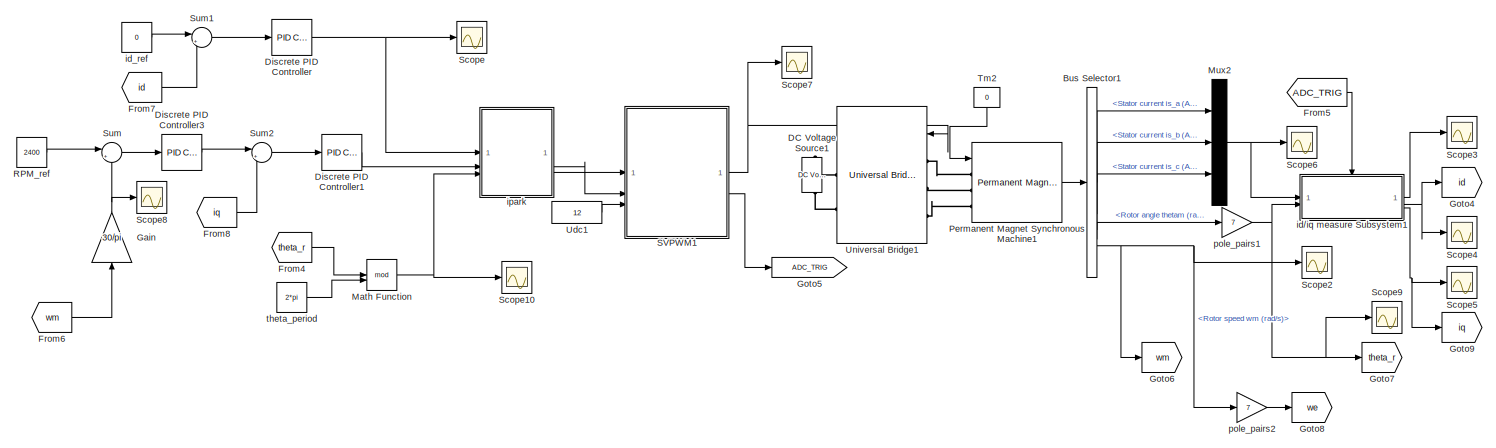
[diagram: root canvas - part 1/3, top center region]
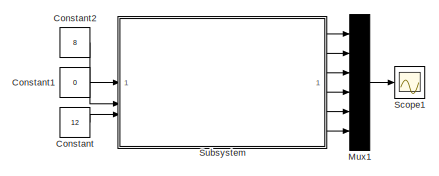
[diagram: root canvas - part 2/3, top right region]
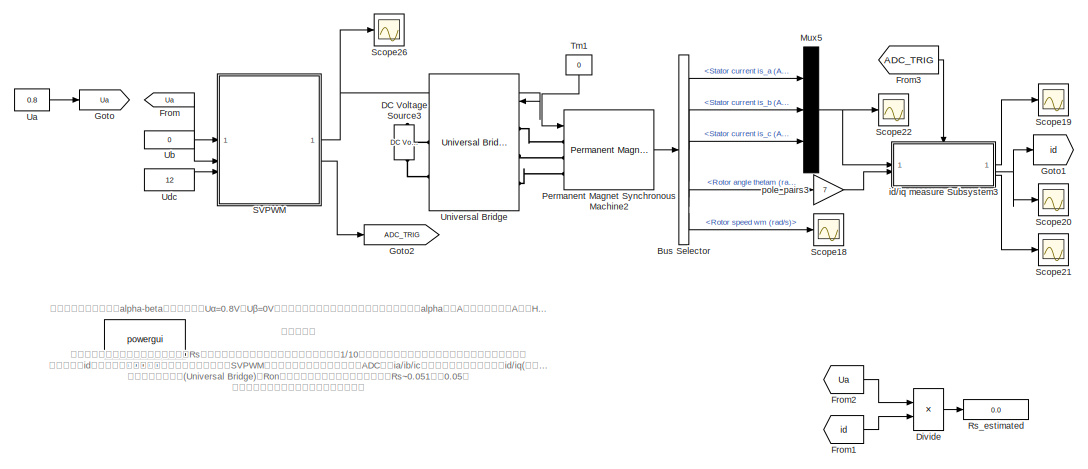
[diagram: root canvas - part 3/3, bottom center region]
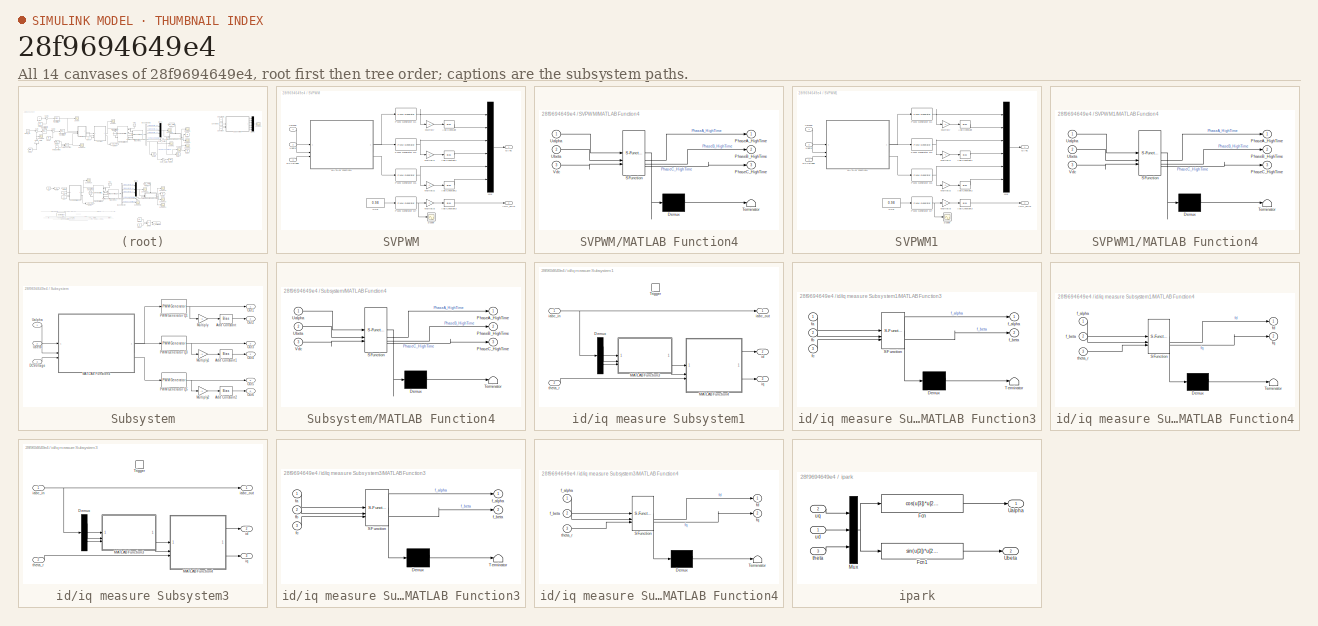
[diagram: thumbnail index - all 14 canvases of the model, root first then tree order]
MODEL slx_28f9694649e4
KIND model
CONFIG AbsTol = auto
CONFIG EnableMultiTasking = off
CONFIG FixedStep = 1E-6
CONFIG MaxStep = auto
CONFIG MinStep = auto
CONFIG RelTol = 1e-3
CONFIG SampleTimeConstraint = Unconstrained
CONFIG SolverName = FixedStepDiscrete
CONFIG StartTime = 0.0
CONFIG StopTime = 0.5
WORKSPACE source: mxarray member
WORKSPACE PWM_Frequency: Simulink.Parameter (value not decoded)
WORKSPACE TimerPeriod = 0.1
BLOCK [BusSelector] Bus Selector
  Commented = on
  OutputSignals = Stator current is_a (A),Stator current is_b (A),Stator current is_c (A),Rotor angle thetam (rad),Rotor speed wm (rad/s)
BLOCK [BusSelector] Bus Selector1
  OutputSignals = Stator current is_a (A),Stator current is_b (A),Stator current is_c (A),Rotor angle thetam (rad),Rotor speed wm (rad/s)
BLOCK [Constant] Constant
  Commented = on
  Value = 12
BLOCK [Constant] Constant1
  Commented = on
  Value = 0
BLOCK [Constant] Constant2
  Commented = on
  Value = 8
BLOCK [Reference] DC Voltage Source1  REF=spsDCVoltageSourceLib/DC Voltage Source
  LibrarySourceBlock = sps_lib/Sources/DC Voltage Source
  SourceBlock = spsDCVoltageSourceLib/DC Voltage Source
  SourceType = DC Voltage Source
BLOCK [Reference] DC Voltage Source3  REF=spsDCVoltageSourceLib/DC Voltage Source
  Commented = on
  LibrarySourceBlock = sps_lib/Sources/DC Voltage Source
  SourceBlock = spsDCVoltageSourceLib/DC Voltage Source
  SourceType = DC Voltage Source
BLOCK [Reference] Discrete PID Controller  REF=slpidlib/PID Controller
  LibrarySourceBlock = simulink/Discrete/Discrete PID Controller
  SourceBlock = slpidlib/PID Controller
  SourceType = PID 1dof
BLOCK [Reference] Discrete PID Controller1  REF=slpidlib/PID Controller
  LibrarySourceBlock = simulink/Discrete/Discrete PID Controller
  SourceBlock = slpidlib/PID Controller
  SourceType = PID 1dof
BLOCK [Reference] Discrete PID Controller3  REF=slpidlib/PID Controller
  LibrarySourceBlock = simulink/Discrete/Discrete PID Controller
  SourceBlock = slpidlib/PID Controller
  SourceType = PID 1dof
BLOCK [Product] Divide
  Commented = on
  Inputs = */
BLOCK [From] From
  Commented = on
  GotoTag = Ua
BLOCK [From] From1
  Commented = on
  GotoTag = id
BLOCK [From] From2
  Commented = on
  GotoTag = Ua
BLOCK [From] From3
  Commented = on
  GotoTag = ADC_TRIG
BLOCK [From] From4
  GotoTag = theta_r
BLOCK [From] From5
  GotoTag = ADC_TRIG
BLOCK [From] From6
  GotoTag = wm
BLOCK [From] From7
  GotoTag = id
BLOCK [From] From8
  GotoTag = iq
BLOCK [Gain] Gain
  Gain = 30/pi
  NameLocation = right
BLOCK [Goto] Goto
  Commented = on
  GotoTag = Ua
BLOCK [Goto] Goto1
  Commented = on
  GotoTag = id
BLOCK [Goto] Goto2
  Commented = on
  GotoTag = ADC_TRIG
BLOCK [Goto] Goto4
  GotoTag = id
BLOCK [Goto] Goto5
  GotoTag = ADC_TRIG
BLOCK [Goto] Goto6
  GotoTag = wm
BLOCK [Goto] Goto7
  GotoTag = theta_r
BLOCK [Goto] Goto8
  GotoTag = we
BLOCK [Goto] Goto9
  GotoTag = iq
BLOCK [Math] Math Function
  Operator = mod
BLOCK [Mux] Mux1
  Commented = on
  DisplayOption = bar
  Inputs = 6
BLOCK [Mux] Mux2
  DisplayOption = bar
  Inputs = 3
BLOCK [Mux] Mux5
  Commented = on
  DisplayOption = bar
  Inputs = 3
BLOCK [Reference] Permanent Magnet Synchronous Machine1  REF=spsPermanentMagnetSynchronousMachineLib/Permanent Magnet
Synchronous Machine
  LibrarySourceBlock = sps_lib/Electrical Machines/Permanent Magnet\nSynchronous Machine
  SourceBlock = spsPermanentMagnetSynchronousMachineLib/Permanent Magnet\nSynchronous Machine
  SourceType = Permanent Magnet Synchronous Machine
BLOCK [Reference] Permanent Magnet Synchronous Machine2  REF=spsPermanentMagnetSynchronousMachineLib/Permanent Magnet
Synchronous Machine
  Commented = on
  LibrarySourceBlock = sps_lib/Electrical Machines/Permanent Magnet\nSynchronous Machine
  SourceBlock = spsPermanentMagnetSynchronousMachineLib/Permanent Magnet\nSynchronous Machine
  SourceType = Permanent Magnet Synchronous Machine
BLOCK [Constant] RPM_ref
  Value = 2400
BLOCK [Display] Rs_estimated
  Commented = on
  Decimation = 1
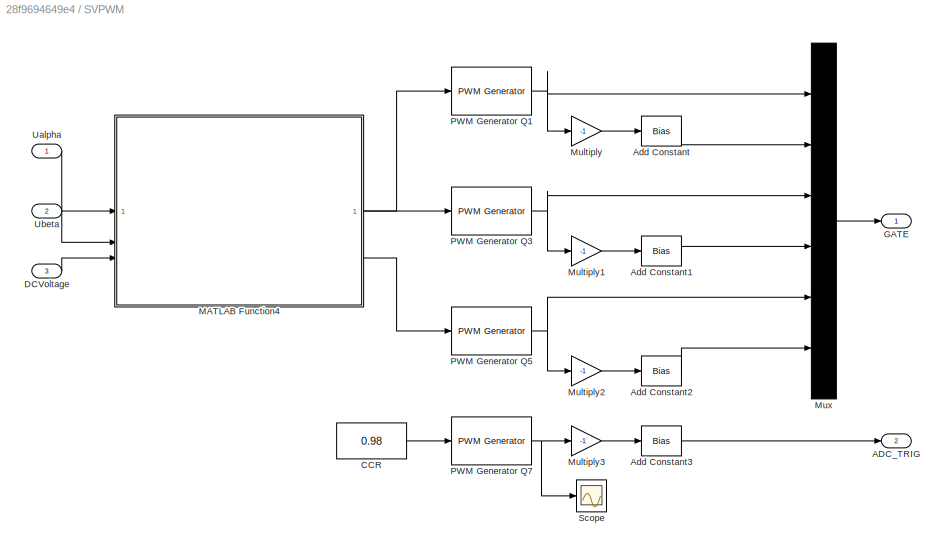
BLOCK [SubSystem] SVPWM
  Commented = on
BLOCK [Outport] SVPWM/ADC_TRIG
  Port = 2
BLOCK [Bias] SVPWM/Add Constant
  Bias = 1
  SaturateOnIntegerOverflow = off
BLOCK [Bias] SVPWM/Add Constant1
  Bias = 1
  SaturateOnIntegerOverflow = off
BLOCK [Bias] SVPWM/Add Constant2
  Bias = 1
  SaturateOnIntegerOverflow = off
BLOCK [Bias] SVPWM/Add Constant3
  Bias = 1
  SaturateOnIntegerOverflow = off
BLOCK [Constant] SVPWM/CCR
  Value = 0.98
BLOCK [Inport] SVPWM/DCVoltage
  IconDisplay = Signal name
  Port = 3
BLOCK [Outport] SVPWM/GATE
BLOCK [SubSystem] SVPWM/MATLAB Function4
  ErrorFcn = Stateflow.Translate.translate
  PermitHierarchicalResolution = ExplicitOnly
  SFBlockType = MATLAB Function
  TreatAsAtomicUnit = on
BLOCK [Demux] SVPWM/MATLAB Function4/ Demux 
  Outputs = 1
BLOCK [S-Function] SVPWM/MATLAB Function4/ SFunction 
  EnableBusSupport = on
  FunctionName = sf_sfun
  PortCounts = [3 4]
  SFcnIsStateOwnerBlock = off
  SFunctionDeploymentMode = off
  Tag = Stateflow S-Function 17
BLOCK [Terminator] SVPWM/MATLAB Function4/ Terminator 
BLOCK [Outport] SVPWM/MATLAB Function4/PhaseA_HighTime
BLOCK [Outport] SVPWM/MATLAB Function4/PhaseB_HighTime
  Port = 2
BLOCK [Outport] SVPWM/MATLAB Function4/PhaseC_HighTime
  Port = 3
BLOCK [Inport] SVPWM/MATLAB Function4/Ualpha
BLOCK [Inport] SVPWM/MATLAB Function4/Ubeta
  Port = 2
BLOCK [Inport] SVPWM/MATLAB Function4/Vdc
  Port = 3
BLOCK [Gain] SVPWM/Multiply
  Gain = -1
BLOCK [Gain] SVPWM/Multiply1
  Gain = -1
BLOCK [Gain] SVPWM/Multiply2
  Gain = -1
BLOCK [Gain] SVPWM/Multiply3
  Gain = -1
BLOCK [Mux] SVPWM/Mux
  DisplayOption = bar
  Inputs = 6
BLOCK [Reference] SVPWM/PWM Generator Q1  REF=eePwmGenerator/PWM Generator
  LibrarySourceBlock = ee_sl_lib/Pulse Width\nModulation/PWM Generator
  SourceBlock = eePwmGenerator/PWM Generator
  SourceType = PWM Generator
BLOCK [Reference] SVPWM/PWM Generator Q3  REF=eePwmGenerator/PWM Generator
  LibrarySourceBlock = ee_sl_lib/Pulse Width\nModulation/PWM Generator
  SourceBlock = eePwmGenerator/PWM Generator
  SourceType = PWM Generator
BLOCK [Reference] SVPWM/PWM Generator Q5  REF=eePwmGenerator/PWM Generator
  LibrarySourceBlock = ee_sl_lib/Pulse Width\nModulation/PWM Generator
  SourceBlock = eePwmGenerator/PWM Generator
  SourceType = PWM Generator
BLOCK [Reference] SVPWM/PWM Generator Q7  REF=eePwmGenerator/PWM Generator
  LibrarySourceBlock = ee_sl_lib/Pulse Width\nModulation/PWM Generator
  SourceBlock = eePwmGenerator/PWM Generator
  SourceType = PWM Generator
BLOCK [Scope] SVPWM/Scope
  Floating = off
  NumInputPorts = 1
  ScopeSpecificationString = Simulink.scopes.TimeScopeBlockCfg('CurrentConfiguration', extmgr.ConfigurationSet(extmgr.Configuration('Core','General UI',true),extmgr.Configuration('Core','Source UI',true),extmgr.Configuration('Sources','WiredSimulink',true,'DataLoggingVariableName','ScopeData1'),extmgr.Configuration('Visuals','Time Domain',true,'SerializedDisplays',{struct('MinYLimReal','-0.125','MaxYLimReal','1.125','YLabelRe...<+1555ch>
BLOCK [Inport] SVPWM/Ualpha
BLOCK [Inport] SVPWM/Ubeta
  Port = 2
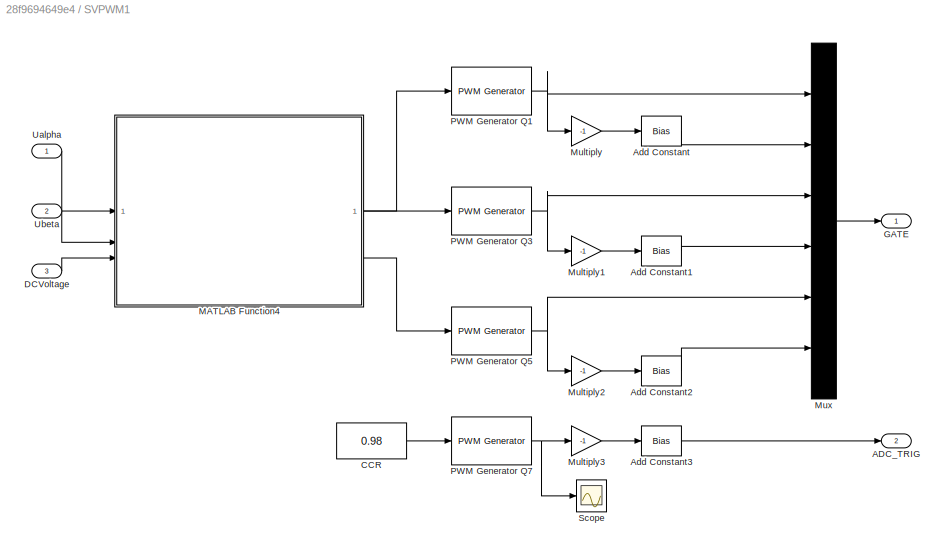
BLOCK [SubSystem] SVPWM1
BLOCK [Outport] SVPWM1/ADC_TRIG
  Port = 2
BLOCK [Bias] SVPWM1/Add Constant
  Bias = 1
  SaturateOnIntegerOverflow = off
BLOCK [Bias] SVPWM1/Add Constant1
  Bias = 1
  SaturateOnIntegerOverflow = off
BLOCK [Bias] SVPWM1/Add Constant2
  Bias = 1
  SaturateOnIntegerOverflow = off
BLOCK [Bias] SVPWM1/Add Constant3
  Bias = 1
  SaturateOnIntegerOverflow = off
BLOCK [Constant] SVPWM1/CCR
  Value = 0.98
BLOCK [Inport] SVPWM1/DCVoltage
  IconDisplay = Signal name
  Port = 3
BLOCK [Outport] SVPWM1/GATE
BLOCK [SubSystem] SVPWM1/MATLAB Function4
  ErrorFcn = Stateflow.Translate.translate
  PermitHierarchicalResolution = ExplicitOnly
  SFBlockType = MATLAB Function
  TreatAsAtomicUnit = on
BLOCK [Demux] SVPWM1/MATLAB Function4/ Demux 
  Outputs = 1
BLOCK [S-Function] SVPWM1/MATLAB Function4/ SFunction 
  EnableBusSupport = on
  FunctionName = sf_sfun
  PortCounts = [3 4]
  SFcnIsStateOwnerBlock = off
  SFunctionDeploymentMode = off
  Tag = Stateflow S-Function 1
BLOCK [Terminator] SVPWM1/MATLAB Function4/ Terminator 
BLOCK [Outport] SVPWM1/MATLAB Function4/PhaseA_HighTime
BLOCK [Outport] SVPWM1/MATLAB Function4/PhaseB_HighTime
  Port = 2
BLOCK [Outport] SVPWM1/MATLAB Function4/PhaseC_HighTime
  Port = 3
BLOCK [Inport] SVPWM1/MATLAB Function4/Ualpha
BLOCK [Inport] SVPWM1/MATLAB Function4/Ubeta
  Port = 2
BLOCK [Inport] SVPWM1/MATLAB Function4/Vdc
  Port = 3
BLOCK [Gain] SVPWM1/Multiply
  Gain = -1
BLOCK [Gain] SVPWM1/Multiply1
  Gain = -1
BLOCK [Gain] SVPWM1/Multiply2
  Gain = -1
BLOCK [Gain] SVPWM1/Multiply3
  Gain = -1
BLOCK [Mux] SVPWM1/Mux
  DisplayOption = bar
  Inputs = 6
BLOCK [Reference] SVPWM1/PWM Generator Q1  REF=eePwmGenerator/PWM Generator
  LibrarySourceBlock = ee_sl_lib/Pulse Width\nModulation/PWM Generator
  SourceBlock = eePwmGenerator/PWM Generator
  SourceType = PWM Generator
BLOCK [Reference] SVPWM1/PWM Generator Q3  REF=eePwmGenerator/PWM Generator
  LibrarySourceBlock = ee_sl_lib/Pulse Width\nModulation/PWM Generator
  SourceBlock = eePwmGenerator/PWM Generator
  SourceType = PWM Generator
BLOCK [Reference] SVPWM1/PWM Generator Q5  REF=eePwmGenerator/PWM Generator
  LibrarySourceBlock = ee_sl_lib/Pulse Width\nModulation/PWM Generator
  SourceBlock = eePwmGenerator/PWM Generator
  SourceType = PWM Generator
BLOCK [Reference] SVPWM1/PWM Generator Q7  REF=eePwmGenerator/PWM Generator
  LibrarySourceBlock = ee_sl_lib/Pulse Width\nModulation/PWM Generator
  SourceBlock = eePwmGenerator/PWM Generator
  SourceType = PWM Generator
BLOCK [Scope] SVPWM1/Scope
  Floating = off
  NumInputPorts = 1
  ScopeSpecificationString = Simulink.scopes.TimeScopeBlockCfg('CurrentConfiguration', extmgr.ConfigurationSet(extmgr.Configuration('Core','General UI',true),extmgr.Configuration('Core','Source UI',true),extmgr.Configuration('Sources','WiredSimulink',true,'DataLoggingVariableName','ScopeData1'),extmgr.Configuration('Visuals','Time Domain',true,'SerializedDisplays',{struct('MinYLimReal','-0.125','MaxYLimReal','1.125','YLabelRe...<+1555ch>
BLOCK [Inport] SVPWM1/Ualpha
BLOCK [Inport] SVPWM1/Ubeta
  Port = 2
BLOCK [Scope] Scope
  Floating = off
  NumInputPorts = 1
  ScopeSpecificationString = Simulink.scopes.TimeScopeBlockCfg('CurrentConfiguration', extmgr.ConfigurationSet(extmgr.Configuration('Core','General UI',true),extmgr.Configuration('Core','Source UI',true),extmgr.Configuration('Sources','WiredSimulink',true,'DataLoggingVariableName','ScopeData8'),extmgr.Configuration('Visuals','Time Domain',true),extmgr.Configuration('Tools','Plot Navigation',true),extmgr.Configuration('Tools',...<+40ch>
BLOCK [Scope] Scope1
  Commented = on
  Floating = off
  NumInputPorts = 1
  ScopeSpecificationString = Simulink.scopes.TimeScopeBlockCfg('CurrentConfiguration', extmgr.ConfigurationSet(extmgr.Configuration('Core','General UI',true),extmgr.Configuration('Core','Source UI',true),extmgr.Configuration('Sources','WiredSimulink',true,'DataLoggingVariableName','ScopeData1'),extmgr.Configuration('Visuals','Time Domain',true,'SerializedDisplays',{struct('MinYLimReal','-0.0185','MaxYLimReal','0.06099','YLabe...<+1881ch>
BLOCK [Scope] Scope10
  Floating = off
  NumInputPorts = 1
  ScopeSpecificationString = Simulink.scopes.TimeScopeBlockCfg('CurrentConfiguration', extmgr.ConfigurationSet(extmgr.Configuration('Core','General UI',true),extmgr.Configuration('Core','Source UI',true),extmgr.Configuration('Sources','WiredSimulink',true,'DataLoggingVariableName','ScopeData11'),extmgr.Configuration('Visuals','Time Domain',true,'SerializedDisplays',{struct('MinYLimReal','-0.7854','MaxYLimReal','7.06858','YLab...<+1490ch>
BLOCK [Scope] Scope18
  Commented = on
  Floating = off
  NumInputPorts = 1
  ScopeSpecificationString = Simulink.scopes.TimeScopeBlockCfg('CurrentConfiguration', extmgr.ConfigurationSet(extmgr.Configuration('Core','General UI',true),extmgr.Configuration('Core','Source UI',true),extmgr.Configuration('Sources','WiredSimulink',true,'DataLoggingVariableName','ScopeData5'),extmgr.Configuration('Visuals','Time Domain',true,'SerializedDisplays',{struct('MinYLimReal','-0.000000000000011','MaxYLimReal','0.00...<+1651ch>
BLOCK [Scope] Scope19
  Commented = on
  Floating = off
  NumInputPorts = 1
  ScopeSpecificationString = Simulink.scopes.TimeScopeBlockCfg('CurrentConfiguration', extmgr.ConfigurationSet(extmgr.Configuration('Core','General UI',true),extmgr.Configuration('Core','Source UI',true),extmgr.Configuration('Sources','WiredSimulink',true,'DataLoggingVariableName','ScopeData6'),extmgr.Configuration('Visuals','Time Domain',true,'SerializedDisplays',{struct('MinYLimReal','1.56942352','MaxYLimReal','1.56942386',...<+1643ch>
BLOCK [Scope] Scope2
  Floating = off
  NumInputPorts = 1
  ScopeSpecificationString = Simulink.scopes.TimeScopeBlockCfg('CurrentConfiguration', extmgr.ConfigurationSet(extmgr.Configuration('Core','General UI',true),extmgr.Configuration('Core','Source UI',true),extmgr.Configuration('Sources','WiredSimulink',true,'DataLoggingVariableName','ScopeData2'),extmgr.Configuration('Visuals','Time Domain',true,'SerializedDisplays',{struct('MinYLimReal','-0.0000000000000016','MaxYLimReal','0.0...<+1639ch>
BLOCK [Scope] Scope20
  Commented = on
  Floating = off
  NumInputPorts = 1
  ScopeSpecificationString = Simulink.scopes.TimeScopeBlockCfg('CurrentConfiguration', extmgr.ConfigurationSet(extmgr.Configuration('Core','General UI',true),extmgr.Configuration('Core','Source UI',true),extmgr.Configuration('Sources','WiredSimulink',true,'DataLoggingVariableName','ScopeData7'),extmgr.Configuration('Visuals','Time Domain',true,'SerializedDisplays',{struct('MinYLimReal','-1.96106','MaxYLimReal','17.64955','YLa...<+1562ch>
BLOCK [Scope] Scope21
  Commented = on
  Floating = off
  NumInputPorts = 1
  ScopeSpecificationString = Simulink.scopes.TimeScopeBlockCfg('CurrentConfiguration', extmgr.ConfigurationSet(extmgr.Configuration('Core','General UI',true),extmgr.Configuration('Core','Source UI',true),extmgr.Configuration('Sources','WiredSimulink',true,'DataLoggingVariableName','ScopeData8'),extmgr.Configuration('Visuals','Time Domain',true,'SerializedDisplays',{struct('MinYLimReal','-0.00000000000001','MaxYLimReal','0.000...<+1634ch>
BLOCK [Scope] Scope22
  Commented = on
  Floating = off
  NumInputPorts = 1
  ScopeSpecificationString = Simulink.scopes.TimeScopeBlockCfg('CurrentConfiguration', extmgr.ConfigurationSet(extmgr.Configuration('Core','General UI',true),extmgr.Configuration('Core','Source UI',true),extmgr.Configuration('Sources','WiredSimulink',true,'DataLoggingVariableName','ScopeData9'),extmgr.Configuration('Visuals','Time Domain',true,'SerializedDisplays',{struct('MinYLimReal','-71.19361','MaxYLimReal','122.97078','Y...<+1688ch>
BLOCK [Scope] Scope26
  Commented = on
  Floating = off
  NumInputPorts = 1
  ScopeSpecificationString = Simulink.scopes.TimeScopeBlockCfg('CurrentConfiguration', extmgr.ConfigurationSet(extmgr.Configuration('Core','General UI',true),extmgr.Configuration('Core','Source UI',true),extmgr.Configuration('Sources','WiredSimulink',true,'DataLoggingVariableName','ScopeData13'),extmgr.Configuration('Visuals','Time Domain',true,'SerializedDisplays',{struct('MinYLimReal','-0.03367','MaxYLimReal','1.01582','YLa...<+1903ch>
BLOCK [Scope] Scope3
  Floating = off
  NumInputPorts = 1
  ScopeSpecificationString = Simulink.scopes.TimeScopeBlockCfg('CurrentConfiguration', extmgr.ConfigurationSet(extmgr.Configuration('Core','General UI',true),extmgr.Configuration('Core','Source UI',true),extmgr.Configuration('Sources','WiredSimulink',true,'DataLoggingVariableName','ScopeData3'),extmgr.Configuration('Visuals','Time Domain',true,'SerializedDisplays',{struct('MinYLimReal','-10103749611279989478455973703397974136...<+2872ch>
BLOCK [Scope] Scope4
  Floating = off
  NumInputPorts = 1
  ScopeSpecificationString = Simulink.scopes.TimeScopeBlockCfg('CurrentConfiguration', extmgr.ConfigurationSet(extmgr.Configuration('Core','General UI',true),extmgr.Configuration('Core','Source UI',true),extmgr.Configuration('Sources','WiredSimulink',true,'DataLoggingVariableName','ScopeData4'),extmgr.Configuration('Visuals','Time Domain',true,'SerializedDisplays',{struct('MinYLimReal','-1.96106','MaxYLimReal','17.64955','YLa...<+1562ch>
BLOCK [Scope] Scope5
  Floating = off
  NumInputPorts = 1
  ScopeSpecificationString = Simulink.scopes.TimeScopeBlockCfg('CurrentConfiguration', extmgr.ConfigurationSet(extmgr.Configuration('Core','General UI',true),extmgr.Configuration('Core','Source UI',true),extmgr.Configuration('Sources','WiredSimulink',true,'DataLoggingVariableName','ScopeData5'),extmgr.Configuration('Visuals','Time Domain',true,'SerializedDisplays',{struct('MinYLimReal','-0.00000000000001','MaxYLimReal','0.000...<+1634ch>
BLOCK [Scope] Scope6
  Floating = off
  NumInputPorts = 1
  ScopeSpecificationString = Simulink.scopes.TimeScopeBlockCfg('CurrentConfiguration', extmgr.ConfigurationSet(extmgr.Configuration('Core','General UI',true),extmgr.Configuration('Core','Source UI',true),extmgr.Configuration('Sources','WiredSimulink',true,'DataLoggingVariableName','ScopeData6'),extmgr.Configuration('Visuals','Time Domain',true,'SerializedDisplays',{struct('MinYLimReal','-39.00272','MaxYLimReal','52.89398','YL...<+1711ch>
BLOCK [Scope] Scope7
  Floating = off
  NumInputPorts = 1
  ScopeSpecificationString = Simulink.scopes.TimeScopeBlockCfg('CurrentConfiguration', extmgr.ConfigurationSet(extmgr.Configuration('Core','General UI',true),extmgr.Configuration('Core','Source UI',true),extmgr.Configuration('Sources','WiredSimulink',true,'DataLoggingVariableName','ScopeData7'),extmgr.Configuration('Visuals','Time Domain',true,'SerializedDisplays',{struct('MinYLimReal','-0.125','MaxYLimReal','1.125','YLabelRe...<+1872ch>
BLOCK [Scope] Scope8
  Floating = off
  NumInputPorts = 1
  ScopeSpecificationString = Simulink.scopes.TimeScopeBlockCfg('CurrentConfiguration', extmgr.ConfigurationSet(extmgr.Configuration('Core','General UI',true),extmgr.Configuration('Core','Source UI',true),extmgr.Configuration('Sources','WiredSimulink',true,'DataLoggingVariableName','ScopeData9'),extmgr.Configuration('Visuals','Time Domain',true,'SerializedDisplays',{struct('MinYLimReal','-74.82591','MaxYLimReal','673.43321','Y...<+1566ch>
BLOCK [Scope] Scope9
  Floating = off
  NumInputPorts = 1
  ScopeSpecificationString = Simulink.scopes.TimeScopeBlockCfg('CurrentConfiguration', extmgr.ConfigurationSet(extmgr.Configuration('Core','General UI',true),extmgr.Configuration('Core','Source UI',true),extmgr.Configuration('Sources','WiredSimulink',true,'DataLoggingVariableName','ScopeData10'),extmgr.Configuration('Visuals','Time Domain',true,'SerializedDisplays',{struct('MinYLimReal','-21.48843','MaxYLimReal','193.39584','...<+1530ch>
BLOCK [SubSystem] Subsystem
  Commented = on
BLOCK [Bias] Subsystem/Add Constant
  Bias = 1
  SaturateOnIntegerOverflow = off
BLOCK [Bias] Subsystem/Add Constant1
  Bias = 1
  SaturateOnIntegerOverflow = off
BLOCK [Bias] Subsystem/Add Constant2
  Bias = 1
  SaturateOnIntegerOverflow = off
BLOCK [Inport] Subsystem/DCVoltage
  IconDisplay = Signal name
  Port = 3
BLOCK [SubSystem] Subsystem/MATLAB Function4
  ErrorFcn = Stateflow.Translate.translate
  PermitHierarchicalResolution = ExplicitOnly
  SFBlockType = MATLAB Function
  TreatAsAtomicUnit = on
BLOCK [Demux] Subsystem/MATLAB Function4/ Demux 
  Outputs = 1
BLOCK [S-Function] Subsystem/MATLAB Function4/ SFunction 
  EnableBusSupport = on
  FunctionName = sf_sfun
  PortCounts = [3 4]
  SFcnIsStateOwnerBlock = off
  SFunctionDeploymentMode = off
  Tag = Stateflow S-Function 5
BLOCK [Terminator] Subsystem/MATLAB Function4/ Terminator 
BLOCK [Outport] Subsystem/MATLAB Function4/PhaseA_HighTime
BLOCK [Outport] Subsystem/MATLAB Function4/PhaseB_HighTime
  Port = 2
BLOCK [Outport] Subsystem/MATLAB Function4/PhaseC_HighTime
  Port = 3
BLOCK [Inport] Subsystem/MATLAB Function4/Ualpha
BLOCK [Inport] Subsystem/MATLAB Function4/Ubeta
  Port = 2
BLOCK [Inport] Subsystem/MATLAB Function4/Vdc
  Port = 3
BLOCK [Gain] Subsystem/Multiply
  Gain = -1
BLOCK [Gain] Subsystem/Multiply1
  Gain = -1
BLOCK [Gain] Subsystem/Multiply2
  Gain = -1
BLOCK [Outport] Subsystem/Out1
BLOCK [Outport] Subsystem/Out2
  Port = 2
BLOCK [Outport] Subsystem/Out3
  Port = 3
BLOCK [Outport] Subsystem/Out4
  Port = 4
BLOCK [Outport] Subsystem/Out5
  Port = 5
BLOCK [Outport] Subsystem/Out6
  Port = 6
BLOCK [Reference] Subsystem/PWM Generator Q1  REF=eePwmGenerator/PWM Generator
  LibrarySourceBlock = ee_sl_lib/Pulse Width\nModulation/PWM Generator
  SourceBlock = eePwmGenerator/PWM Generator
  SourceType = PWM Generator
BLOCK [Reference] Subsystem/PWM Generator Q3  REF=eePwmGenerator/PWM Generator
  LibrarySourceBlock = ee_sl_lib/Pulse Width\nModulation/PWM Generator
  SourceBlock = eePwmGenerator/PWM Generator
  SourceType = PWM Generator
BLOCK [Reference] Subsystem/PWM Generator Q5  REF=eePwmGenerator/PWM Generator
  LibrarySourceBlock = ee_sl_lib/Pulse Width\nModulation/PWM Generator
  SourceBlock = eePwmGenerator/PWM Generator
  SourceType = PWM Generator
BLOCK [Inport] Subsystem/Ualpha
BLOCK [Inport] Subsystem/Ubeta
  IconDisplay = Signal name
  Port = 2
BLOCK [Sum] Sum
  Inputs = |+-
BLOCK [Sum] Sum1
  Inputs = |+-
BLOCK [Sum] Sum2
  Inputs = |+-
BLOCK [Constant] Tm1
  Commented = on
  NameLocation = top
  Value = 0
BLOCK [Constant] Tm2
  NameLocation = top
  Value = 0
BLOCK [Constant] Ua
  Commented = on
  Value = 0.8
BLOCK [Constant] Ub
  Commented = on
  Value = 0
BLOCK [Constant] Udc
  Commented = on
  Value = 12
BLOCK [Constant] Udc1
  Value = 12
BLOCK [Reference] Universal Bridge  REF=spsUniversalBridgeLib/Universal Bridge
  Commented = on
  LibrarySourceBlock = sps_lib/Power Electronics/Universal Bridge
  SourceBlock = spsUniversalBridgeLib/Universal Bridge
  SourceType = Universal Bridge
BLOCK [Reference] Universal Bridge1  REF=spsUniversalBridgeLib/Universal Bridge
  LibrarySourceBlock = sps_lib/Power Electronics/Universal Bridge
  SourceBlock = spsUniversalBridgeLib/Universal Bridge
  SourceType = Universal Bridge
BLOCK [SubSystem] id//iq measure Subsystem1
  TreatAsAtomicUnit = on
BLOCK [Demux] id//iq measure Subsystem1/Demux
  Outputs = 3
BLOCK [SubSystem] id//iq measure Subsystem1/MATLAB Function3
  ErrorFcn = Stateflow.Translate.translate
  PermitHierarchicalResolution = ExplicitOnly
  SFBlockType = MATLAB Function
  TreatAsAtomicUnit = on
BLOCK [Demux] id//iq measure Subsystem1/MATLAB Function3/ Demux 
  Outputs = 1
BLOCK [S-Function] id//iq measure Subsystem1/MATLAB Function3/ SFunction 
  EnableBusSupport = on
  FunctionName = sf_sfun
  PortCounts = [3 3]
  SFcnIsStateOwnerBlock = off
  SFunctionDeploymentMode = off
  Tag = Stateflow S-Function 2
BLOCK [Terminator] id//iq measure Subsystem1/MATLAB Function3/ Terminator 
BLOCK [Outport] id//iq measure Subsystem1/MATLAB Function3/f_alpha
BLOCK [Outport] id//iq measure Subsystem1/MATLAB Function3/f_beta
  Port = 2
BLOCK [Inport] id//iq measure Subsystem1/MATLAB Function3/fa
BLOCK [Inport] id//iq measure Subsystem1/MATLAB Function3/fb
  Port = 2
BLOCK [Inport] id//iq measure Subsystem1/MATLAB Function3/fc
  Port = 3
BLOCK [SubSystem] id//iq measure Subsystem1/MATLAB Function4
  ErrorFcn = Stateflow.Translate.translate
  PermitHierarchicalResolution = ExplicitOnly
  SFBlockType = MATLAB Function
  TreatAsAtomicUnit = on
BLOCK [Demux] id//iq measure Subsystem1/MATLAB Function4/ Demux 
  Outputs = 1
BLOCK [S-Function] id//iq measure Subsystem1/MATLAB Function4/ SFunction 
  EnableBusSupport = on
  FunctionName = sf_sfun
  PortCounts = [3 3]
  SFcnIsStateOwnerBlock = off
  SFunctionDeploymentMode = off
  Tag = Stateflow S-Function 3
BLOCK [Terminator] id//iq measure Subsystem1/MATLAB Function4/ Terminator 
BLOCK [Inport] id//iq measure Subsystem1/MATLAB Function4/f_alpha
BLOCK [Inport] id//iq measure Subsystem1/MATLAB Function4/f_beta
  Port = 2
BLOCK [Outport] id//iq measure Subsystem1/MATLAB Function4/fd
BLOCK [Outport] id//iq measure Subsystem1/MATLAB Function4/fq
  Port = 2
BLOCK [Inport] id//iq measure Subsystem1/MATLAB Function4/theta_r
  Port = 3
BLOCK [TriggerPort] id//iq measure Subsystem1/Trigger
  StatesWhenEnabling = held
  VariantControl = (inherit)
BLOCK [Inport] id//iq measure Subsystem1/iabc_in
BLOCK [Outport] id//iq measure Subsystem1/iabc_out
BLOCK [Outport] id//iq measure Subsystem1/id
  Port = 2
BLOCK [Outport] id//iq measure Subsystem1/iq
  Port = 3
BLOCK [Inport] id//iq measure Subsystem1/theta_r
  Port = 2
BLOCK [SubSystem] id//iq measure Subsystem3
  Commented = on
  TreatAsAtomicUnit = on
BLOCK [Demux] id//iq measure Subsystem3/Demux
  Outputs = 3
BLOCK [SubSystem] id//iq measure Subsystem3/MATLAB Function3
  ErrorFcn = Stateflow.Translate.translate
  PermitHierarchicalResolution = ExplicitOnly
  SFBlockType = MATLAB Function
  TreatAsAtomicUnit = on
BLOCK [Demux] id//iq measure Subsystem3/MATLAB Function3/ Demux 
  Outputs = 1
BLOCK [S-Function] id//iq measure Subsystem3/MATLAB Function3/ SFunction 
  EnableBusSupport = on
  FunctionName = sf_sfun
  PortCounts = [3 3]
  SFcnIsStateOwnerBlock = off
  SFunctionDeploymentMode = off
  Tag = Stateflow S-Function 20
BLOCK [Terminator] id//iq measure Subsystem3/MATLAB Function3/ Terminator 
BLOCK [Outport] id//iq measure Subsystem3/MATLAB Function3/f_alpha
BLOCK [Outport] id//iq measure Subsystem3/MATLAB Function3/f_beta
  Port = 2
BLOCK [Inport] id//iq measure Subsystem3/MATLAB Function3/fa
BLOCK [Inport] id//iq measure Subsystem3/MATLAB Function3/fb
  Port = 2
BLOCK [Inport] id//iq measure Subsystem3/MATLAB Function3/fc
  Port = 3
BLOCK [SubSystem] id//iq measure Subsystem3/MATLAB Function4
  ErrorFcn = Stateflow.Translate.translate
  PermitHierarchicalResolution = ExplicitOnly
  SFBlockType = MATLAB Function
  TreatAsAtomicUnit = on
BLOCK [Demux] id//iq measure Subsystem3/MATLAB Function4/ Demux 
  Outputs = 1
BLOCK [S-Function] id//iq measure Subsystem3/MATLAB Function4/ SFunction 
  EnableBusSupport = on
  FunctionName = sf_sfun
  PortCounts = [3 3]
  SFcnIsStateOwnerBlock = off
  SFunctionDeploymentMode = off
  Tag = Stateflow S-Function 21
BLOCK [Terminator] id//iq measure Subsystem3/MATLAB Function4/ Terminator 
BLOCK [Inport] id//iq measure Subsystem3/MATLAB Function4/f_alpha
BLOCK [Inport] id//iq measure Subsystem3/MATLAB Function4/f_beta
  Port = 2
BLOCK [Outport] id//iq measure Subsystem3/MATLAB Function4/fd
BLOCK [Outport] id//iq measure Subsystem3/MATLAB Function4/fq
  Port = 2
BLOCK [Inport] id//iq measure Subsystem3/MATLAB Function4/theta_r
  Port = 3
BLOCK [TriggerPort] id//iq measure Subsystem3/Trigger
  StatesWhenEnabling = held
  VariantControl = (inherit)
BLOCK [Inport] id//iq measure Subsystem3/iabc_in
BLOCK [Outport] id//iq measure Subsystem3/iabc_out
BLOCK [Outport] id//iq measure Subsystem3/id
  Port = 2
BLOCK [Outport] id//iq measure Subsystem3/iq
  Port = 3
BLOCK [Inport] id//iq measure Subsystem3/theta_r
  Port = 2
BLOCK [Constant] id_ref
  Value = 0
BLOCK [SubSystem] ipark
BLOCK [Fcn] ipark/Fcn
  Expr = cos(u[3])*u[2]-sin(u[3])*u[1]
BLOCK [Fcn] ipark/Fcn1
  Expr = sin(u[3])*u[2]+cos(u[3])*u[1]
BLOCK [Mux] ipark/Mux
  DisplayOption = bar
  Inputs = 3
BLOCK [Outport] ipark/Ualpha
BLOCK [Outport] ipark/Ubeta
  Port = 2
BLOCK [Inport] ipark/theta
  Port = 3
BLOCK [Inport] ipark/ud
BLOCK [Inport] ipark/uq
  Port = 2
BLOCK [Gain] pole_pairs1
  Gain = 7
BLOCK [Gain] pole_pairs2
  Gain = 7
BLOCK [Gain] pole_pairs3
  Commented = on
  Gain = 7
BLOCK [Reference] powergui  REF=sps_lib/powergui
  LibrarySourceBlock = sps_lib/powergui
  Priority = 1
  SourceBlock = sps_lib/powergui
  SourceType = PSB option menu block
BLOCK [Constant] theta_period
  Value = 2*pi
ANNOTATION (root): 在电机空载时，在静止alpha-beta坐标系中施加Uα=0.8V，Uβ=0V，此时电机将被强拖至一固定位置，不会旋转。alpha轴与A相重合，这对应A相接High，B相&C相解GND的直流电路，于是当电路稳定后有：Uα/id=Rs 注意事项： 第一，若在实际电机中执行此方法测量Rs，施加电压不可太大，一般不超过电源电压的1/10，直流电流持续时间应尽可能短，以防烧坏电机线圈。 第二，此处id的测量值，采用了贴合实际的方案，即用以与SVPWM同频率的触发信号，触发下桥臂ADC采样ia/ib/ic，再通过坐标变换人为合成id/iq(由于此处电机不转，id/iq就是iα/iβ)。这样得到的ia/ib/ic/id/iq不再携带SVPWM的高频载波。 第三，逆变器模块(Universal Bridge)的Ron参数也会被算入相电阻，所以这里的Rs~0.051而非0.05。 第四，仿真时间要足够让系...<+7ch>
LINE Bus Selector1:1 -> Mux2:1
LINE Bus Selector1:2 -> Mux2:2
LINE Bus Selector1:3 -> Mux2:3
LINE Bus Selector1:4 -> pole_pairs1:1
NET Bus Selector1:5 -> Goto6:1, Scope2:1, pole_pairs2:1
LINE Bus Selector:1 -> Mux5:1
LINE Bus Selector:2 -> Mux5:2
LINE Bus Selector:3 -> Mux5:3
LINE Bus Selector:4 -> pole_pairs3:1
LINE Bus Selector:5 -> Scope18:1
LINE Constant1:1 -> Subsystem:2
LINE Constant2:1 -> Subsystem:1
LINE Constant:1 -> Subsystem:3
LINE Discrete PID Controller1:1 -> ipark:2
LINE Discrete PID Controller3:1 -> Sum2:1
NET Discrete PID Controller:1 -> Scope:1, ipark:1
LINE Divide:1 -> Rs_estimated:1
LINE From1:1 -> Divide:2
LINE From2:1 -> Divide:1
LINE From3:1 -> id//iq measure Subsystem3:trigger
LINE From4:1 -> Math Function:1
LINE From5:1 -> id//iq measure Subsystem1:trigger
LINE From6:1 -> Gain:1
LINE From7:1 -> Sum1:2
LINE From8:1 -> Sum2:2
LINE From:1 -> SVPWM:1
NET Gain:1 -> Scope8:1, Sum:2
NET Math Function:1 -> Scope10:1, ipark:3
LINE Mux1:1 -> Scope1:1
NET Mux2:1 -> Scope6:1, id//iq measure Subsystem1:1
NET Mux5:1 -> Scope22:1, id//iq measure Subsystem3:1
LINE Permanent Magnet Synchronous Machine1:1 -> Bus Selector1:1
LINE Permanent Magnet Synchronous Machine2:1 -> Bus Selector:1
LINE RPM_ref:1 -> Sum:1
LINE SVPWM/Add Constant1:1 -> SVPWM/Mux:4
LINE SVPWM/Add Constant2:1 -> SVPWM/Mux:6
LINE SVPWM/Add Constant3:1 -> SVPWM/ADC_TRIG:1
LINE SVPWM/Add Constant:1 -> SVPWM/Mux:2
LINE SVPWM/CCR:1 -> SVPWM/PWM Generator Q7:1
LINE SVPWM/DCVoltage:1 -> SVPWM/MATLAB Function4:3
LINE SVPWM/MATLAB Function4:1 -> SVPWM/PWM Generator Q1:1
LINE SVPWM/MATLAB Function4:2 -> SVPWM/PWM Generator Q3:1
LINE SVPWM/MATLAB Function4:3 -> SVPWM/PWM Generator Q5:1
LINE SVPWM/Multiply1:1 -> SVPWM/Add Constant1:1
LINE SVPWM/Multiply2:1 -> SVPWM/Add Constant2:1
LINE SVPWM/Multiply3:1 -> SVPWM/Add Constant3:1
LINE SVPWM/Multiply:1 -> SVPWM/Add Constant:1
LINE SVPWM/Mux:1 -> SVPWM/GATE:1
NET SVPWM/PWM Generator Q1:1 -> SVPWM/Multiply:1, SVPWM/Mux:1
NET SVPWM/PWM Generator Q3:1 -> SVPWM/Multiply1:1, SVPWM/Mux:3
NET SVPWM/PWM Generator Q5:1 -> SVPWM/Multiply2:1, SVPWM/Mux:5
NET SVPWM/PWM Generator Q7:1 -> SVPWM/Multiply3:1, SVPWM/Scope:1
LINE SVPWM/Ualpha:1 -> SVPWM/MATLAB Function4:1
LINE SVPWM/Ubeta:1 -> SVPWM/MATLAB Function4:2
LINE SVPWM1/Add Constant1:1 -> SVPWM1/Mux:4
LINE SVPWM1/Add Constant2:1 -> SVPWM1/Mux:6
LINE SVPWM1/Add Constant3:1 -> SVPWM1/ADC_TRIG:1
LINE SVPWM1/Add Constant:1 -> SVPWM1/Mux:2
LINE SVPWM1/CCR:1 -> SVPWM1/PWM Generator Q7:1
LINE SVPWM1/DCVoltage:1 -> SVPWM1/MATLAB Function4:3
LINE SVPWM1/MATLAB Function4:1 -> SVPWM1/PWM Generator Q1:1
LINE SVPWM1/MATLAB Function4:2 -> SVPWM1/PWM Generator Q3:1
LINE SVPWM1/MATLAB Function4:3 -> SVPWM1/PWM Generator Q5:1
LINE SVPWM1/Multiply1:1 -> SVPWM1/Add Constant1:1
LINE SVPWM1/Multiply2:1 -> SVPWM1/Add Constant2:1
LINE SVPWM1/Multiply3:1 -> SVPWM1/Add Constant3:1
LINE SVPWM1/Multiply:1 -> SVPWM1/Add Constant:1
LINE SVPWM1/Mux:1 -> SVPWM1/GATE:1
NET SVPWM1/PWM Generator Q1:1 -> SVPWM1/Multiply:1, SVPWM1/Mux:1
NET SVPWM1/PWM Generator Q3:1 -> SVPWM1/Multiply1:1, SVPWM1/Mux:3
NET SVPWM1/PWM Generator Q5:1 -> SVPWM1/Multiply2:1, SVPWM1/Mux:5
NET SVPWM1/PWM Generator Q7:1 -> SVPWM1/Multiply3:1, SVPWM1/Scope:1
LINE SVPWM1/Ualpha:1 -> SVPWM1/MATLAB Function4:1
LINE SVPWM1/Ubeta:1 -> SVPWM1/MATLAB Function4:2
NET SVPWM1:1 -> Scope7:1, Universal Bridge1:1
LINE SVPWM1:2 -> Goto5:1
NET SVPWM:1 -> Scope26:1, Universal Bridge:1
LINE SVPWM:2 -> Goto2:1
LINE Subsystem/Add Constant1:1 -> Subsystem/Out4:1
LINE Subsystem/Add Constant2:1 -> Subsystem/Out6:1
LINE Subsystem/Add Constant:1 -> Subsystem/Out2:1
LINE Subsystem/DCVoltage:1 -> Subsystem/MATLAB Function4:3
LINE Subsystem/MATLAB Function4:1 -> Subsystem/PWM Generator Q1:1
LINE Subsystem/MATLAB Function4:2 -> Subsystem/PWM Generator Q3:1
LINE Subsystem/MATLAB Function4:3 -> Subsystem/PWM Generator Q5:1
LINE Subsystem/Multiply1:1 -> Subsystem/Add Constant1:1
LINE Subsystem/Multiply2:1 -> Subsystem/Add Constant2:1
LINE Subsystem/Multiply:1 -> Subsystem/Add Constant:1
NET Subsystem/PWM Generator Q1:1 -> Subsystem/Multiply:1, Subsystem/Out1:1
NET Subsystem/PWM Generator Q3:1 -> Subsystem/Multiply1:1, Subsystem/Out3:1
NET Subsystem/PWM Generator Q5:1 -> Subsystem/Multiply2:1, Subsystem/Out5:1
LINE Subsystem/Ualpha:1 -> Subsystem/MATLAB Function4:1
LINE Subsystem/Ubeta:1 -> Subsystem/MATLAB Function4:2
LINE Subsystem:1 -> Mux1:1
LINE Subsystem:2 -> Mux1:2
LINE Subsystem:3 -> Mux1:3
LINE Subsystem:4 -> Mux1:4
LINE Subsystem:5 -> Mux1:5
LINE Subsystem:6 -> Mux1:6
LINE Sum1:1 -> Discrete PID Controller:1
LINE Sum2:1 -> Discrete PID Controller1:1
LINE Sum:1 -> Discrete PID Controller3:1
LINE Tm1:1 -> Permanent Magnet Synchronous Machine2:1
LINE Tm2:1 -> Permanent Magnet Synchronous Machine1:1
LINE Ua:1 -> Goto:1
LINE Ub:1 -> SVPWM:2
LINE Udc1:1 -> SVPWM1:3
LINE Udc:1 -> SVPWM:3
LINE id//iq measure Subsystem1/Demux:1 -> id//iq measure Subsystem1/MATLAB Function3:1
LINE id//iq measure Subsystem1/Demux:2 -> id//iq measure Subsystem1/MATLAB Function3:2
LINE id//iq measure Subsystem1/Demux:3 -> id//iq measure Subsystem1/MATLAB Function3:3
LINE id//iq measure Subsystem1/MATLAB Function3:1 -> id//iq measure Subsystem1/MATLAB Function4:1
LINE id//iq measure Subsystem1/MATLAB Function3:2 -> id//iq measure Subsystem1/MATLAB Function4:2
LINE id//iq measure Subsystem1/MATLAB Function4:1 -> id//iq measure Subsystem1/id:1
LINE id//iq measure Subsystem1/MATLAB Function4:2 -> id//iq measure Subsystem1/iq:1
NET id//iq measure Subsystem1/iabc_in:1 -> id//iq measure Subsystem1/Demux:1, id//iq measure Subsystem1/iabc_out:1
LINE id//iq measure Subsystem1/theta_r:1 -> id//iq measure Subsystem1/MATLAB Function4:3
LINE id//iq measure Subsystem1:1 -> Scope3:1
NET id//iq measure Subsystem1:2 -> Goto4:1, Scope4:1
NET id//iq measure Subsystem1:3 -> Goto9:1, Scope5:1
LINE id//iq measure Subsystem3/Demux:1 -> id//iq measure Subsystem3/MATLAB Function3:1
LINE id//iq measure Subsystem3/Demux:2 -> id//iq measure Subsystem3/MATLAB Function3:2
LINE id//iq measure Subsystem3/Demux:3 -> id//iq measure Subsystem3/MATLAB Function3:3
LINE id//iq measure Subsystem3/MATLAB Function3:1 -> id//iq measure Subsystem3/MATLAB Function4:1
LINE id//iq measure Subsystem3/MATLAB Function3:2 -> id//iq measure Subsystem3/MATLAB Function4:2
LINE id//iq measure Subsystem3/MATLAB Function4:1 -> id//iq measure Subsystem3/id:1
LINE id//iq measure Subsystem3/MATLAB Function4:2 -> id//iq measure Subsystem3/iq:1
NET id//iq measure Subsystem3/iabc_in:1 -> id//iq measure Subsystem3/Demux:1, id//iq measure Subsystem3/iabc_out:1
LINE id//iq measure Subsystem3/theta_r:1 -> id//iq measure Subsystem3/MATLAB Function4:3
LINE id//iq measure Subsystem3:1 -> Scope19:1
NET id//iq measure Subsystem3:2 -> Goto1:1, Scope20:1
LINE id//iq measure Subsystem3:3 -> Scope21:1
LINE id_ref:1 -> Sum1:1
LINE ipark/Fcn1:1 -> ipark/Ubeta:1
LINE ipark/Fcn:1 -> ipark/Ualpha:1
NET ipark/Mux:1 -> ipark/Fcn1:1, ipark/Fcn:1
LINE ipark/theta:1 -> ipark/Mux:3
LINE ipark/ud:1 -> ipark/Mux:2
LINE ipark/uq:1 -> ipark/Mux:1
LINE ipark:1 -> SVPWM1:1
LINE ipark:2 -> SVPWM1:2
NET pole_pairs1:1 -> Goto7:1, Scope9:1, id//iq measure Subsystem1:2
LINE pole_pairs2:1 -> Goto8:1
LINE pole_pairs3:1 -> id//iq measure Subsystem3:2
LINE theta_period:1 -> Math Function:2
PLINE DC Voltage Source1:LConn1 -- Universal Bridge1:RConn2
PLINE DC Voltage Source1:RConn1 -- Universal Bridge1:RConn1
PLINE DC Voltage Source3:LConn1 -- Universal Bridge:RConn2
PLINE DC Voltage Source3:RConn1 -- Universal Bridge:RConn1
PLINE Permanent Magnet Synchronous Machine1:LConn1 -- Universal Bridge1:LConn1
PLINE Permanent Magnet Synchronous Machine1:LConn2 -- Universal Bridge1:LConn2
PLINE Permanent Magnet Synchronous Machine1:LConn3 -- Universal Bridge1:LConn3
PLINE Permanent Magnet Synchronous Machine2:LConn1 -- Universal Bridge:LConn1
PLINE Permanent Magnet Synchronous Machine2:LConn2 -- Universal Bridge:LConn2
PLINE Permanent Magnet Synchronous Machine2:LConn3 -- Universal Bridge:LConn3
note: NET lines group one-source signal fan-out (src -> all destinations, sorted); 1:1 wires keep LINE
CHART SVPWM1/MATLAB Function4 states=1 transitions=1
  STATE_LABEL 'eML_blk_kernel()'
  STATE_LABEL 'SCRIPT:\nfunction [PhaseA_HighTime,PhaseB_HighTime,PhaseC_HighTime] = SVPWM_calculate(Ualpha,Ubeta,Vdc)\n\n% unit:V %\n\n%step 1,which sector?%\nif Ualpha >= 0\n    %sector=1,2,5,6%\n    if Ubeta >= 0\n        %sector=1,2%\n        if Ubeta > sqrt(3)*Ualpha\n            sector=2;\n        else\n            sector=1;\n        end\n    else\n        %sector=5,6%\n        if -Ubeta > sqrt(3)*Ualpha\n            sector...<+1917ch>'
CHART id//iq measure
Subsystem1/MATLAB Function3 states=1 transitions=1
  STATE_LABEL 'eML_blk_kernel()'
  STATE_LABEL 'SCRIPT:\nfunction [f_alpha,f_beta]= ABC_to_AlphaBeta(fa,fb,fc)\nf_alpha = (2/3)*(fa-0.5*(fb+fc));\nf_beta = (2/3)*(0.5*sqrt(3)*(fb-fc));\n\n'
CHART id//iq measure
Subsystem1/MATLAB Function4 states=1 transitions=1
  STATE_LABEL 'eML_blk_kernel()'
  STATE_LABEL 'SCRIPT:\nfunction [fd,fq]= AlphaBeta_to_dq(f_alpha,f_beta,theta_r)\n\nc = cos(theta_r);\ns = sin(theta_r);\nfd =  c*f_alpha + s*f_beta;\nfq = -s*f_alpha + c*f_beta;\n\n'
CHART Subsystem/MATLAB Function4 states=1 transitions=1
  STATE_LABEL 'eML_blk_kernel()'
  STATE_LABEL 'SCRIPT:\nfunction [PhaseA_HighTime,PhaseB_HighTime,PhaseC_HighTime] = SVPWM_calculate(Ualpha,Ubeta,Vdc)\n\n% unit:V %\n\n%step 1,which sector?%\nif Ualpha >= 0\n    %sector=1,2,5,6%\n    if Ubeta >= 0\n        %sector=1,2%\n        if Ubeta > sqrt(3)*Ualpha\n            sector=2;\n        else\n            sector=1;\n        end\n    else\n        %sector=5,6%\n        if -Ubeta > sqrt(3)*Ualpha\n            sector...<+1801ch>'
CHART SVPWM/MATLAB Function4 states=1 transitions=1
  STATE_LABEL 'eML_blk_kernel()'
  STATE_LABEL 'SCRIPT:\nfunction [PhaseA_HighTime,PhaseB_HighTime,PhaseC_HighTime] = SVPWM_calculate(Ualpha,Ubeta,Vdc)\n\n% unit:V %\n\n%step 1,which sector?%\nif Ualpha >= 0\n    %sector=1,2,5,6%\n    if Ubeta >= 0\n        %sector=1,2%\n        if Ubeta > sqrt(3)*Ualpha\n            sector=2;\n        else\n            sector=1;\n        end\n    else\n        %sector=5,6%\n        if -Ubeta > sqrt(3)*Ualpha\n            sector...<+1917ch>'
CHART id//iq measure
Subsystem3/MATLAB Function3 states=1 transitions=1
  STATE_LABEL 'eML_blk_kernel()'
  STATE_LABEL 'SCRIPT:\nfunction [f_alpha,f_beta]= ABC_to_AlphaBeta(fa,fb,fc)\nf_alpha = (2/3)*(fa-0.5*(fb+fc));\nf_beta = (2/3)*(0.5*sqrt(3)*(fb-fc));\n\n'
CHART id//iq measure
Subsystem3/MATLAB Function4 states=1 transitions=1
  STATE_LABEL 'eML_blk_kernel()'
  STATE_LABEL 'SCRIPT:\nfunction [fd,fq]= AlphaBeta_to_dq(f_alpha,f_beta,theta_r)\n\nc = cos(theta_r);\ns = sin(theta_r);\nfd =  c*f_alpha + s*f_beta;\nfq = -s*f_alpha + c*f_beta;\n\n'
CHART  states=0 transitions=0
CHART  states=0 transitions=0
CHART  states=0 transitions=0
CHART  states=0 transitions=0
CHART  states=0 transitions=0
CHART  states=0 transitions=0
CHART  states=0 transitions=0
